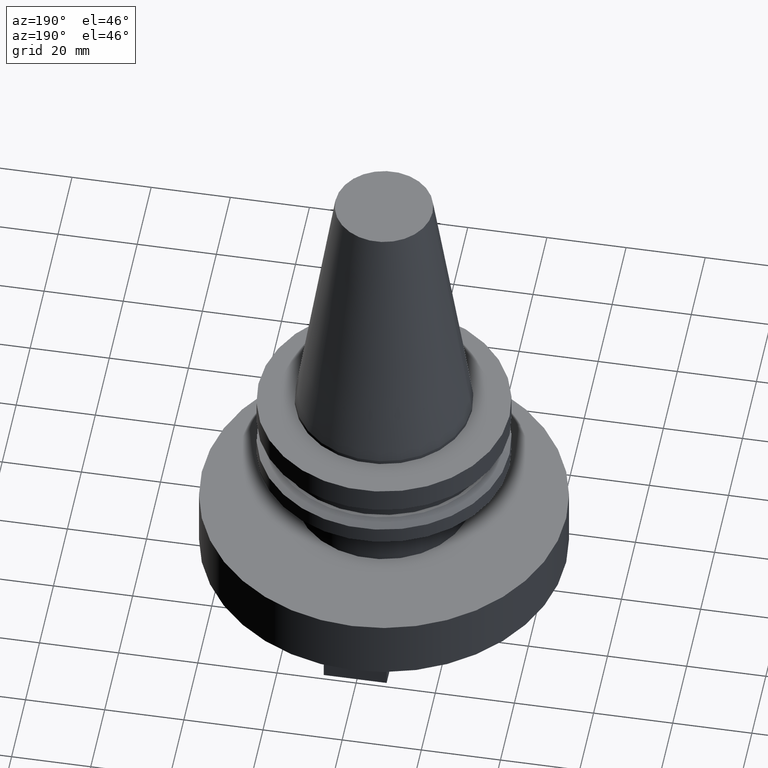
[diagram: clean part render]
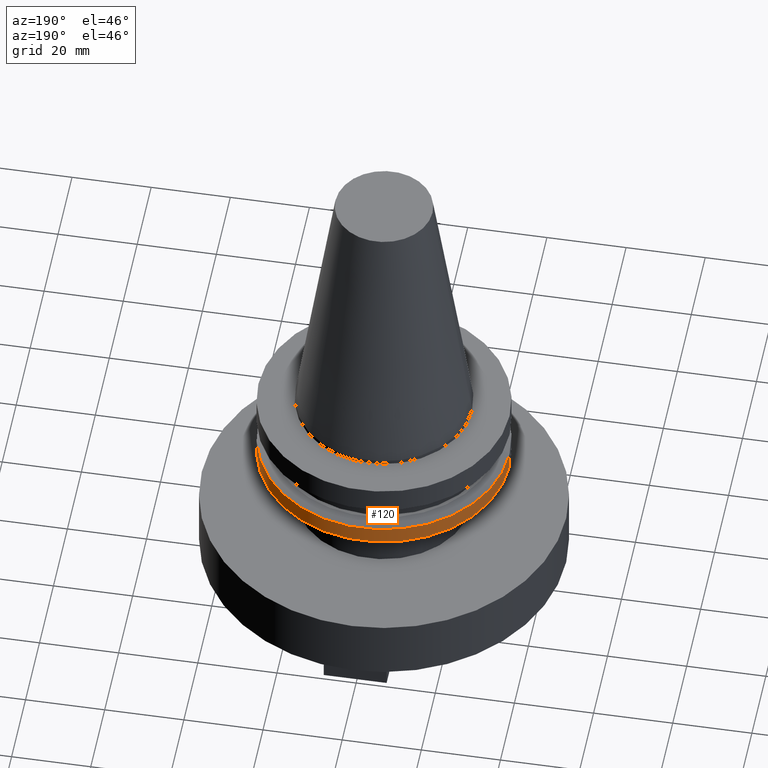
[diagram: same view with one face highlighted and labeled with its STEP entity id]
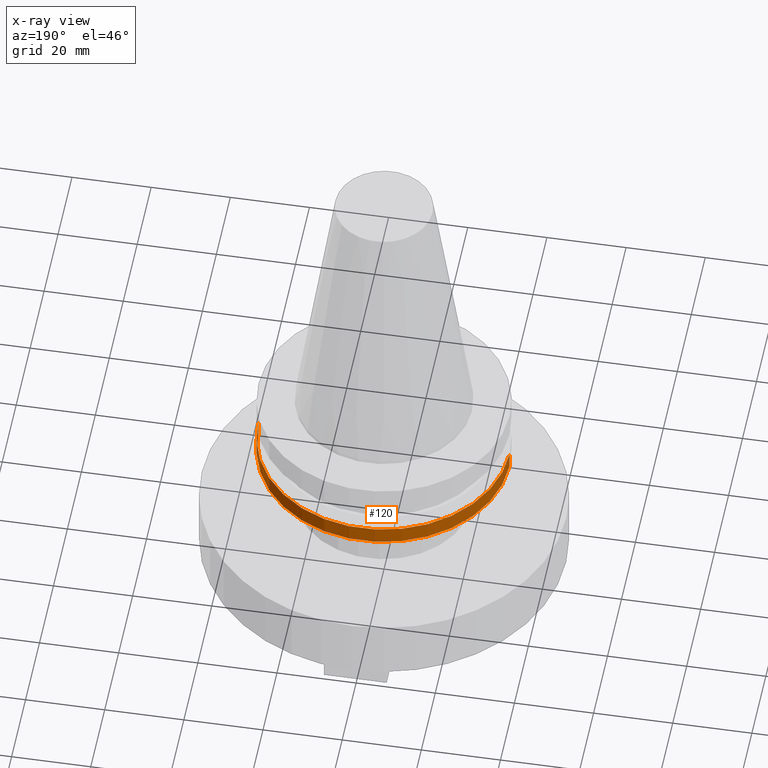
[diagram: x-ray of the same camera — body ghosted, the highlighted face saturated]
A machine part, auxiliary view. The second image highlights one B-rep face of the part: STEP entity #120.
The next image is the same camera in x-ray: the body ghosted, the highlighted face saturated — about 0% of this face is hidden behind the body in this view.
In plain terms, the highlighted cylindrical surface (partial cylindrical patch) has radius 31.75 mm, axis along (-0, -0, 1).
Its self-contained STEP definition (entity closure, byte-faithful):
#65 = DIRECTION ( 'NONE',  ( -0.000000000000000000, -0.000000000000000000, 1.000000000000000000 ) ) ;
#95 = CARTESIAN_POINT ( 'NONE',  ( 31.75000000000000000, 0.000000000000000000, 68.25000000000000000 ) ) ;
#120 = ADVANCED_FACE ( 'NONE', ( #581 ), #502, .T. ) ;
#149 = DIRECTION ( 'NONE',  ( -0.000000000000000000, -0.000000000000000000, 1.000000000000000000 ) ) ;
#164 = CARTESIAN_POINT ( 'NONE',  ( 0.000000000000000000, 0.000000000000000000, 68.25000000000000000 ) ) ;
#171 = EDGE_LOOP ( 'NONE', ( #606, #187, #279, #1024 ) ) ;
#172 = EDGE_CURVE ( 'NONE', #1034, #1046, #273, .T. ) ;
#187 = ORIENTED_EDGE ( 'NONE', *, *, #631, .T. ) ;
#193 = CIRCLE ( 'NONE', #955, 31.75000000000000000 ) ;
#202 = CARTESIAN_POINT ( 'NONE',  ( 0.000000000000000000, 0.000000000000000000, -19.04999999999999716 ) ) ;
#229 = VERTEX_POINT ( 'NONE', #806 ) ;
#264 = EDGE_CURVE ( 'NONE', #1034, #521, #975, .T. ) ;
#273 = LINE ( 'NONE', #95, #300 ) ;
#276 = CARTESIAN_POINT ( 'NONE',  ( -31.74999999999999289, 3.888253587292845687E-15, -19.04999999999999716 ) ) ;
#279 = ORIENTED_EDGE ( 'NONE', *, *, #620, .F. ) ;
#281 = DIRECTION ( 'NONE',  ( -0.000000000000000000, -0.000000000000000000, 1.000000000000000000 ) ) ;
#289 = CARTESIAN_POINT ( 'NONE',  ( -31.75000000000000000, 3.888253587292846476E-15, 68.25000000000000000 ) ) ;
#300 = VECTOR ( 'NONE', #444, 1000.000000000000000 ) ;
#363 = CARTESIAN_POINT ( 'NONE',  ( 31.74999999999999289, 0.000000000000000000, -19.04999999999999716 ) ) ;
#380 = AXIS2_PLACEMENT_3D ( 'NONE', #202, #149, #501 ) ;
#405 = VECTOR ( 'NONE', #281, 1000.000000000000000 ) ;
#444 = DIRECTION ( 'NONE',  ( -0.000000000000000000, -0.000000000000000000, 1.000000000000000000 ) ) ;
#459 = CARTESIAN_POINT ( 'NONE',  ( 0.000000000000000000, 0.000000000000000000, -14.65472339340266572 ) ) ;
#501 = DIRECTION ( 'NONE',  ( 1.000000000000000000, 0.000000000000000000, 0.000000000000000000 ) ) ;
#502 = CYLINDRICAL_SURFACE ( 'NONE', #647, 31.75000000000000000 ) ;
#514 = DIRECTION ( 'NONE',  ( 1.000000000000000000, 0.000000000000000000, 0.000000000000000000 ) ) ;
#521 = VERTEX_POINT ( 'NONE', #276 ) ;
#555 = DIRECTION ( 'NONE',  ( 1.000000000000000000, 0.000000000000000000, 0.000000000000000000 ) ) ;
#581 = FACE_OUTER_BOUND ( 'NONE', #171, .T. ) ;
#606 = ORIENTED_EDGE ( 'NONE', *, *, #264, .T. ) ;
#620 = EDGE_CURVE ( 'NONE', #1046, #229, #193, .T. ) ;
#631 = EDGE_CURVE ( 'NONE', #521, #229, #646, .T. ) ;
#646 = LINE ( 'NONE', #289, #405 ) ;
#647 = AXIS2_PLACEMENT_3D ( 'NONE', #164, #65, #514 ) ;
#801 = CARTESIAN_POINT ( 'NONE',  ( 31.75000000000000000, 0.000000000000000000, -14.65472339340266572 ) ) ;
#806 = CARTESIAN_POINT ( 'NONE',  ( -31.75000000000000000, 3.888253587292846476E-15, -14.65472339340266572 ) ) ;
#955 = AXIS2_PLACEMENT_3D ( 'NONE', #459, #1035, #555 ) ;
#975 = CIRCLE ( 'NONE', #380, 31.74999999999999289 ) ;
#1024 = ORIENTED_EDGE ( 'NONE', *, *, #172, .F. ) ;
#1034 = VERTEX_POINT ( 'NONE', #363 ) ;
#1035 = DIRECTION ( 'NONE',  ( -0.000000000000000000, -0.000000000000000000, 1.000000000000000000 ) ) ;
#1046 = VERTEX_POINT ( 'NONE', #801 ) ;